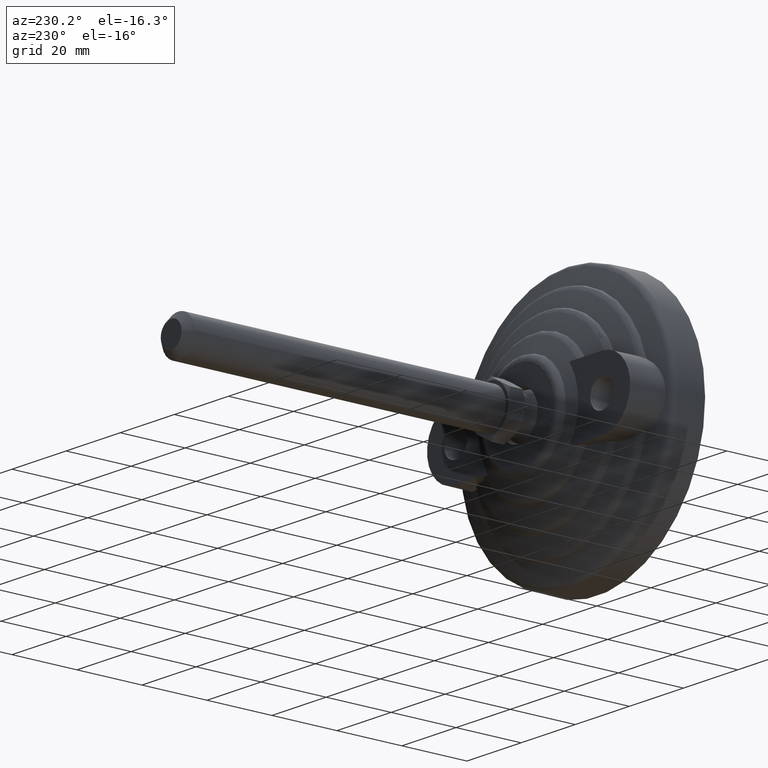
[diagram: clean part render]
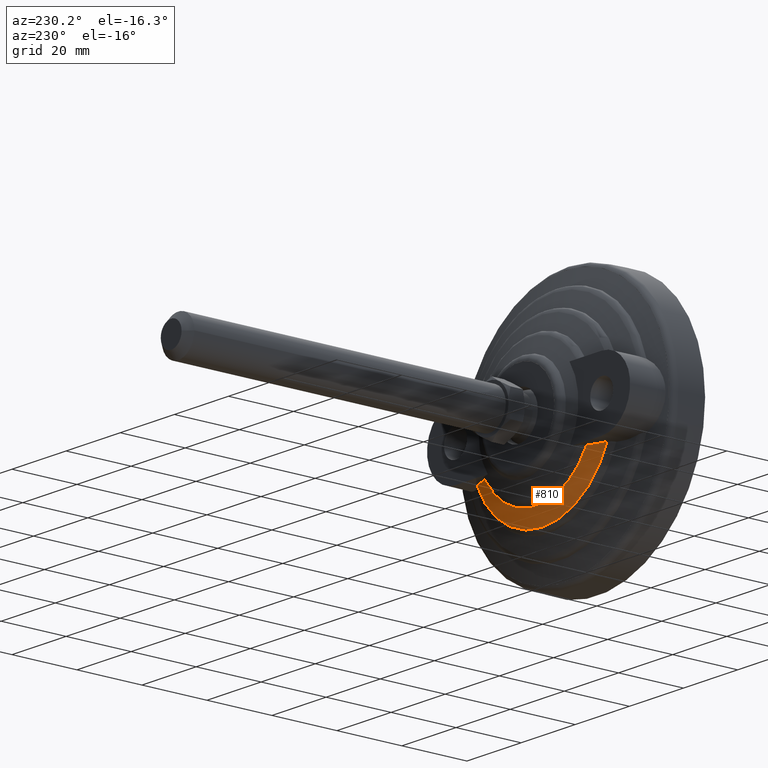
[diagram: same view with one face highlighted and labeled with its STEP entity id]
A machine part, auxiliary view. The second image highlights one B-rep face of the part: STEP entity #810.
In plain terms, the highlighted conical surface has half-angle 69.278 deg.
Its self-contained STEP definition (entity closure, byte-faithful):
#70=(
BOUNDED_CURVE()
B_SPLINE_CURVE(2,(#1513,#1514,#1515),.UNSPECIFIED.,.F.,.F.)
B_SPLINE_CURVE_WITH_KNOTS((3,3),(0.,5.7091762119522),.UNSPECIFIED.)
CURVE()
GEOMETRIC_REPRESENTATION_ITEM()
RATIONAL_B_SPLINE_CURVE((1.,1.00651975650061,1.))
REPRESENTATION_ITEM('')
);
#76=(
BOUNDED_CURVE()
B_SPLINE_CURVE(2,(#1545,#1546,#1547),.UNSPECIFIED.,.F.,.F.)
B_SPLINE_CURVE_WITH_KNOTS((3,3),(0.,5.7091762119522),.UNSPECIFIED.)
CURVE()
GEOMETRIC_REPRESENTATION_ITEM()
RATIONAL_B_SPLINE_CURVE((1.,1.00651975650061,1.))
REPRESENTATION_ITEM('')
);
#149=FACE_OUTER_BOUND('',#197,.T.);
#197=EDGE_LOOP('',(#689,#690,#691,#692));
#290=CIRCLE('',#896,21.3688559201133);
#296=CIRCLE('',#905,26.2130899969146);
#340=VERTEX_POINT('',#1291);
#341=VERTEX_POINT('',#1302);
#351=VERTEX_POINT('',#1364);
#352=VERTEX_POINT('',#1365);
#429=EDGE_CURVE('',#341,#340,#290,.T.);
#443=EDGE_CURVE('',#351,#352,#296,.T.);
#474=EDGE_CURVE('',#340,#352,#70,.T.);
#487=EDGE_CURVE('',#351,#341,#76,.T.);
#689=ORIENTED_EDGE('',*,*,#487,.T.);
#690=ORIENTED_EDGE('',*,*,#429,.T.);
#691=ORIENTED_EDGE('',*,*,#474,.T.);
#692=ORIENTED_EDGE('',*,*,#443,.F.);
#778=CONICAL_SURFACE('',#939,23.7909729585139,1.20912995397194);
#810=ADVANCED_FACE('',(#149),#778,.T.);
#896=AXIS2_PLACEMENT_3D('',#1303,#1024,#1025);
#905=AXIS2_PLACEMENT_3D('',#1366,#1043,#1044);
#939=AXIS2_PLACEMENT_3D('',#1565,#1122,#1123);
#1024=DIRECTION('center_axis',(0.,-1.,0.));
#1025=DIRECTION('ref_axis',(-1.,0.,0.));
#1043=DIRECTION('center_axis',(0.,-1.,0.));
#1044=DIRECTION('ref_axis',(-1.,0.,0.));
#1122=DIRECTION('center_axis',(0.,-1.,0.));
#1123=DIRECTION('ref_axis',(-1.,0.,0.));
#1291=CARTESIAN_POINT('',(18.6112332566802,18.6885788450571,-10.5));
#1302=CARTESIAN_POINT('',(-18.6112332566802,18.6885788450571,-10.5));
#1303=CARTESIAN_POINT('Origin',(0.,18.6885788450571,0.));
#1364=CARTESIAN_POINT('',(-24.0182448814717,16.8559735555763,-10.5));
#1365=CARTESIAN_POINT('',(24.0182448814717,16.8559735555763,-10.5));
#1366=CARTESIAN_POINT('Origin',(0.,16.8559735555763,0.));
#1513=CARTESIAN_POINT('Ctrl Pts',(18.6112332566802,18.6885788450571,-10.5));
#1514=CARTESIAN_POINT('Ctrl Pts',(21.0394999057571,17.8884976336614,-10.5));
#1515=CARTESIAN_POINT('Ctrl Pts',(24.0182448814717,16.8559735555763,-10.5));
#1545=CARTESIAN_POINT('Ctrl Pts',(-24.0182448814717,16.8559735555763,-10.5));
#1546=CARTESIAN_POINT('Ctrl Pts',(-21.0394999057571,17.8884976336614,-10.5));
#1547=CARTESIAN_POINT('Ctrl Pts',(-18.6112332566802,18.6885788450571,-10.5));
#1565=CARTESIAN_POINT('Origin',(0.,17.7722762003167,0.));